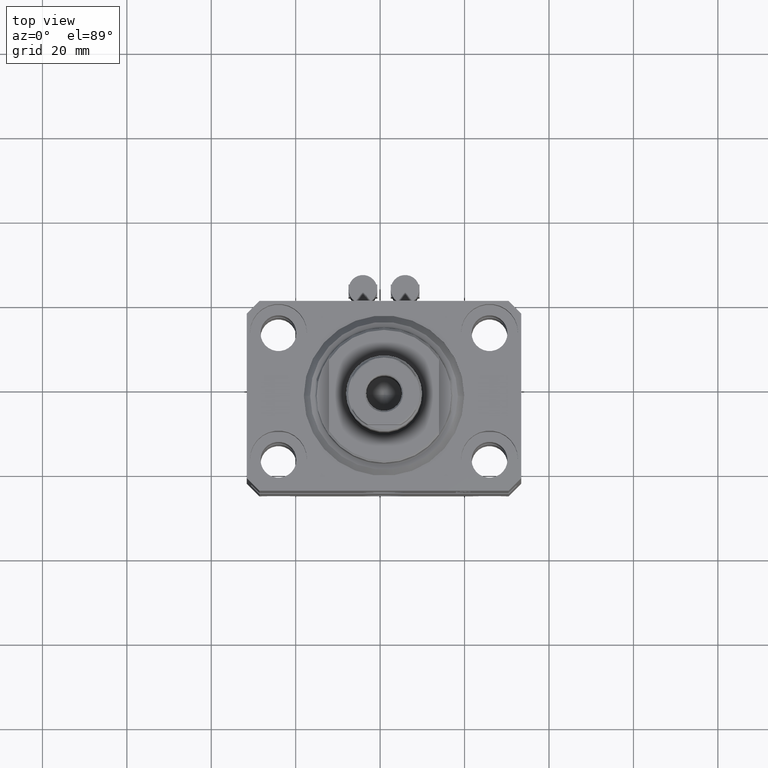
[diagram: clean part render]
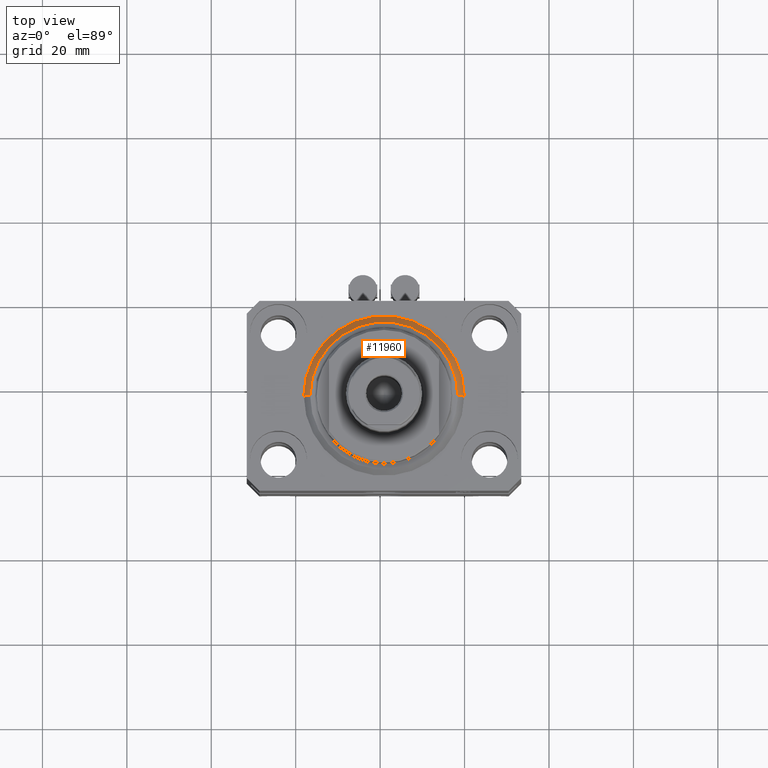
[diagram: same view with one face highlighted and labeled with its STEP entity id]
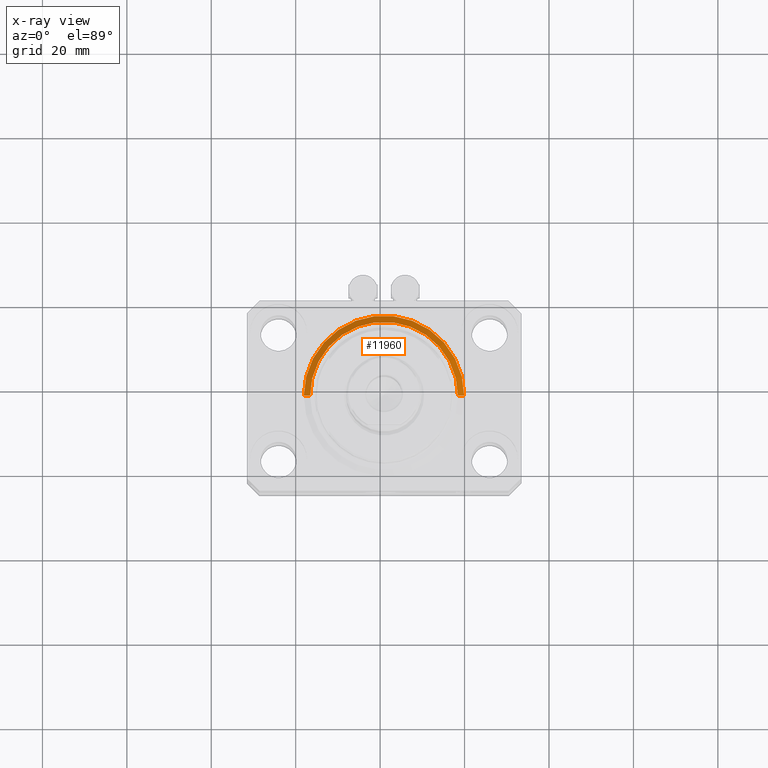
[diagram: x-ray of the same camera — body ghosted, the highlighted face saturated]
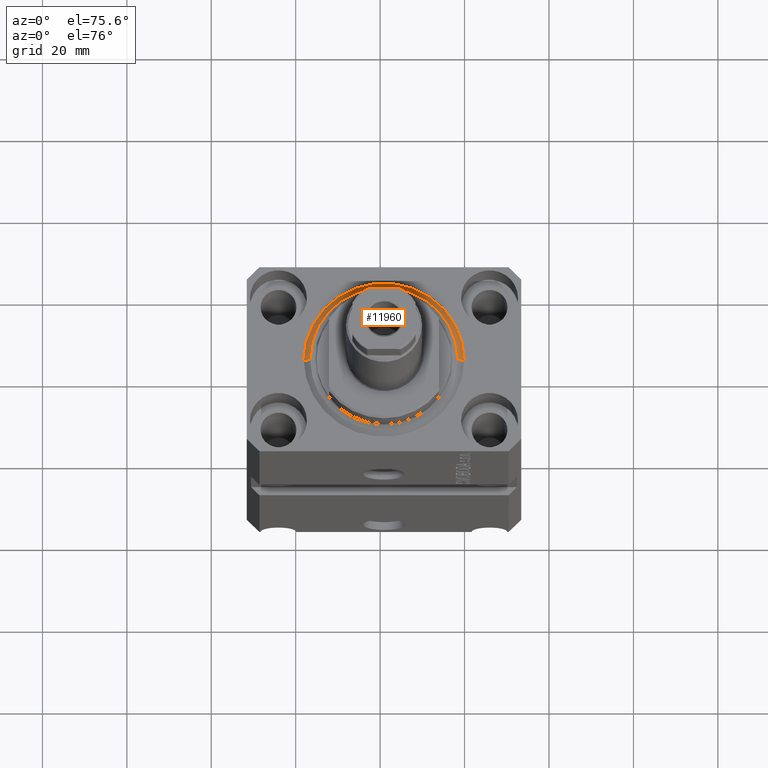
[diagram: same view with one face highlighted and labeled with its STEP entity id]
A machine part, top view. The second image highlights one B-rep face of the part: STEP entity #11960.
The next image is the same camera in x-ray: the body ghosted, the highlighted face saturated — about 0% of this face is hidden behind the body in this view.
A second angle (auxiliary view) of the same face is appended — the face is thin or edge-on in the first view.
In plain terms, the highlighted conical surface has half-angle 45 deg.
Its self-contained STEP definition (entity closure, byte-faithful):
#4 = EDGE_LOOP ( 'NONE', ( #5655, #23732, #21259, #29273 ) ) ;
#979 = EDGE_CURVE ( 'NONE', #20980, #28298, #31795, .T. ) ;
#3578 = AXIS2_PLACEMENT_3D ( 'NONE', #13557, #17674, #27538 ) ;
#5655 = ORIENTED_EDGE ( 'NONE', *, *, #8380, .F. ) ;
#6017 = DIRECTION ( 'NONE',  ( 1.000000000000000000, 0.000000000000000000, 0.000000000000000000 ) ) ;
#6230 = DIRECTION ( 'NONE',  ( 0.7071067811865483499, 0.000000000000000000, 0.7071067811865467956 ) ) ;
#6926 = FACE_OUTER_BOUND ( 'NONE', #4, .T. ) ;
#8084 = VERTEX_POINT ( 'NONE', #13713 ) ;
#8380 = EDGE_CURVE ( 'NONE', #8084, #29516, #17353, .T. ) ;
#9479 = DIRECTION ( 'NONE',  ( -0.7071067811865483499, 8.659560562354942719E-17, 0.7071067811865467956 ) ) ;
#10343 = DIRECTION ( 'NONE',  ( -0.000000000000000000, -0.000000000000000000, -1.000000000000000000 ) ) ;
#11960 = ADVANCED_FACE ( 'NONE', ( #6926 ), #24786, .T. ) ;
#12121 = CARTESIAN_POINT ( 'NONE',  ( 0.000000000000000000, 0.000000000000000000, 1.500000000000001332 ) ) ;
#13557 = CARTESIAN_POINT ( 'NONE',  ( 0.000000000000000000, 0.000000000000000000, 1.500000000000001332 ) ) ;
#13713 = CARTESIAN_POINT ( 'NONE',  ( -17.49999999999999645, 2.234980408443919215E-15, 0.000000000000000000 ) ) ;
#16077 = LINE ( 'NONE', #16304, #37539 ) ;
#16129 = CARTESIAN_POINT ( 'NONE',  ( 17.49999999999999645, 0.000000000000000000, 0.000000000000000000 ) ) ;
#16304 = CARTESIAN_POINT ( 'NONE',  ( 19.00000000000000000, 0.000000000000000000, 1.500000000000001332 ) ) ;
#17353 = CIRCLE ( 'NONE', #19553, 17.49999999999999645 ) ;
#17674 = DIRECTION ( 'NONE',  ( -0.000000000000000000, -0.000000000000000000, 1.000000000000000000 ) ) ;
#18986 = DIRECTION ( 'NONE',  ( -0.000000000000000000, -0.000000000000000000, 1.000000000000000000 ) ) ;
#19553 = AXIS2_PLACEMENT_3D ( 'NONE', #41512, #10343, #6017 ) ;
#20980 = VERTEX_POINT ( 'NONE', #24143 ) ;
#21259 = ORIENTED_EDGE ( 'NONE', *, *, #979, .F. ) ;
#23030 = AXIS2_PLACEMENT_3D ( 'NONE', #12121, #18986, #25205 ) ;
#23732 = ORIENTED_EDGE ( 'NONE', *, *, #26384, .T. ) ;
#24143 = CARTESIAN_POINT ( 'NONE',  ( 19.00000000000000000, 2.326828918379970970E-15, 1.500000000000001332 ) ) ;
#24786 = CONICAL_SURFACE ( 'NONE', #3578, 19.00000000000000000, 0.7853981633974492782 ) ;
#25205 = DIRECTION ( 'NONE',  ( 1.000000000000000000, 0.000000000000000000, 0.000000000000000000 ) ) ;
#26214 = CARTESIAN_POINT ( 'NONE',  ( -19.00000000000000000, 2.326828918379970970E-15, 1.500000000000001332 ) ) ;
#26384 = EDGE_CURVE ( 'NONE', #8084, #28298, #44769, .T. ) ;
#27464 = EDGE_CURVE ( 'NONE', #29516, #20980, #16077, .T. ) ;
#27538 = DIRECTION ( 'NONE',  ( 1.000000000000000000, 0.000000000000000000, 0.000000000000000000 ) ) ;
#28298 = VERTEX_POINT ( 'NONE', #45206 ) ;
#29273 = ORIENTED_EDGE ( 'NONE', *, *, #27464, .F. ) ;
#29516 = VERTEX_POINT ( 'NONE', #16129 ) ;
#31795 = CIRCLE ( 'NONE', #23030, 19.00000000000000000 ) ;
#37539 = VECTOR ( 'NONE', #6230, 1000.000000000000000 ) ;
#41159 = VECTOR ( 'NONE', #9479, 1000.000000000000000 ) ;
#41512 = CARTESIAN_POINT ( 'NONE',  ( 0.000000000000000000, 0.000000000000000000, 0.000000000000000000 ) ) ;
#44769 = LINE ( 'NONE', #26214, #41159 ) ;
#45206 = CARTESIAN_POINT ( 'NONE',  ( -19.00000000000000000, 0.000000000000000000, 1.500000000000001332 ) ) ;